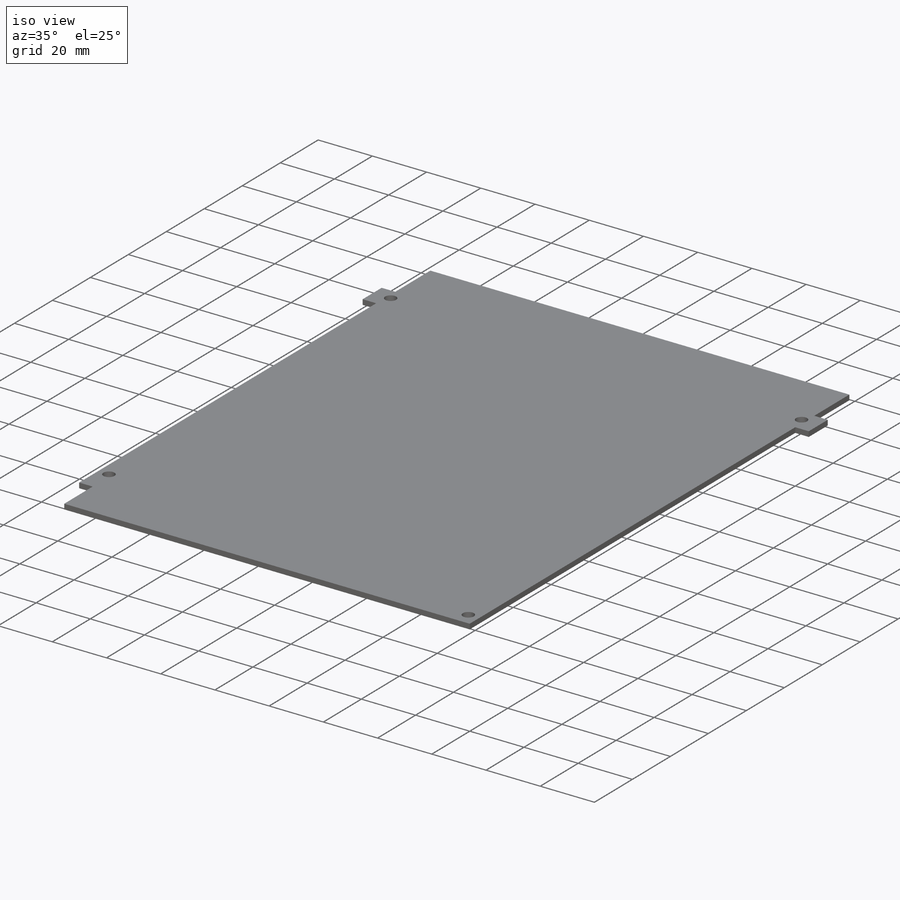
[diagram: iso view]
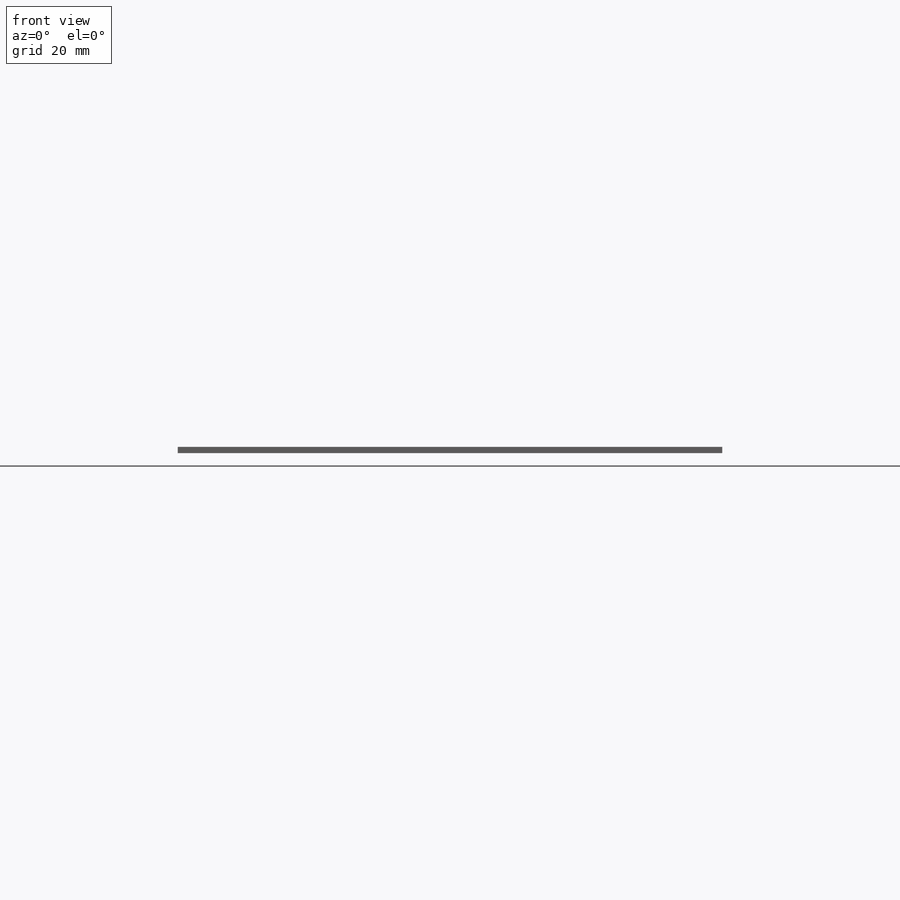
[diagram: front view]
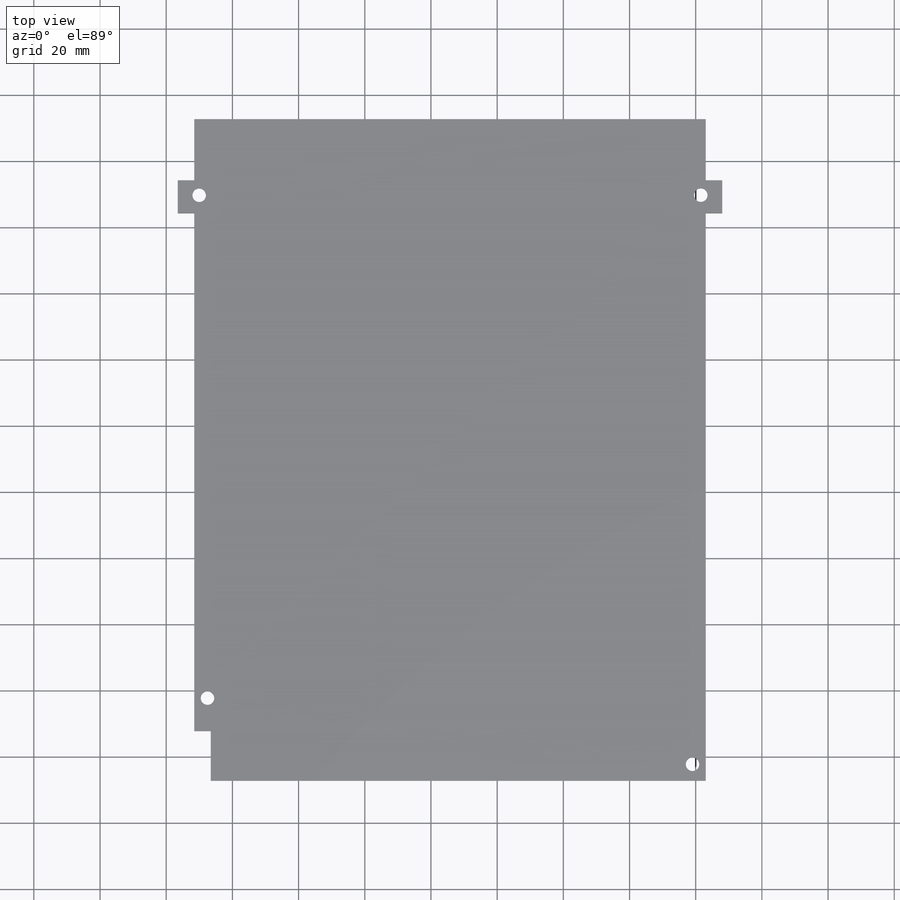
[diagram: top view]
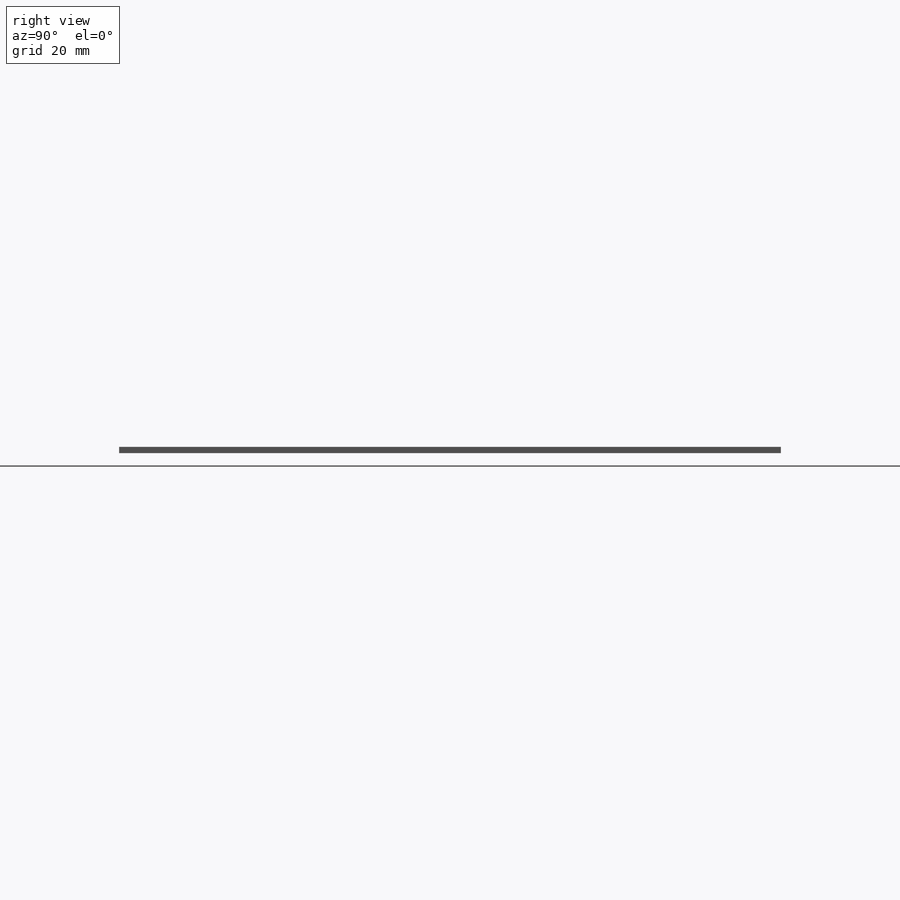
[diagram: right view]
SOLIDWORKS PART (.sldprt)
format: sldprt  version: not decoded by parser v0  size: 299,008 bytes
history: native  units: mm
features: sketch x11, sheet_metal_op x4, cut_extrude x2, material x1 + 3 further entries (+13 scaffold rows collapsed; 3 parser-record rows omitted)
feature tree (37):
  scaffold x13  (default folders/planes/origin — collapsed)
  material  "Material <not specified>"
  sketch  "Sketch1"  dims[c1.D1=200.0mm c1.D2=154.57mm c1.D3=5.0mm c1.D4=10.0mm c1.D5=13.5mm c2.D1=2.54mm c2.D2=0.5 c2.D3=0.0mm c2.D6=500.0mm]
  sheet_metal_op  "Base-Flange1"
  sketch  "Sketch6"  dims[D1=5.0mm]
  cut_extrude  "Cut-Extrude1"  Depth=1.89738mm
  sketch  "Sketch7"  dims[D1=5.0mm D2=15.0mm]
  cut_extrude  "Cut-Extrude2"  Depth=10mm
  sketch  "Bend-Lines1"
  sketch  "Bounding-Box1"
  sheet_metal_op  "Sheet-Metal1"
  "Flat-Pattern1"
  sketch  "Bend-Lines2"
  sketch  "Bounding-Box2"
  parser-record x3  (decoder bookkeeping rows leaked as tree rows — omitted from the tree; the rows remain in map.json)
  sheet_metal_op  "Sheet-Metal2"
  "Flat-Pattern1"
  sketch  "Bend-Lines2"
  sketch  "Bounding-Box2"
  sheet_metal_op  "Sheet-Metal3"
  "Flat-Pattern1"
  sketch  "Bend-Lines2"
  sketch  "Bounding-Box2"
decode coverage: 5 of 17 modeling features carry decoded parameters; 3 rows unclassified (native names shown)
note: suppression state not decoded; provenance and decode notes live in map.json
